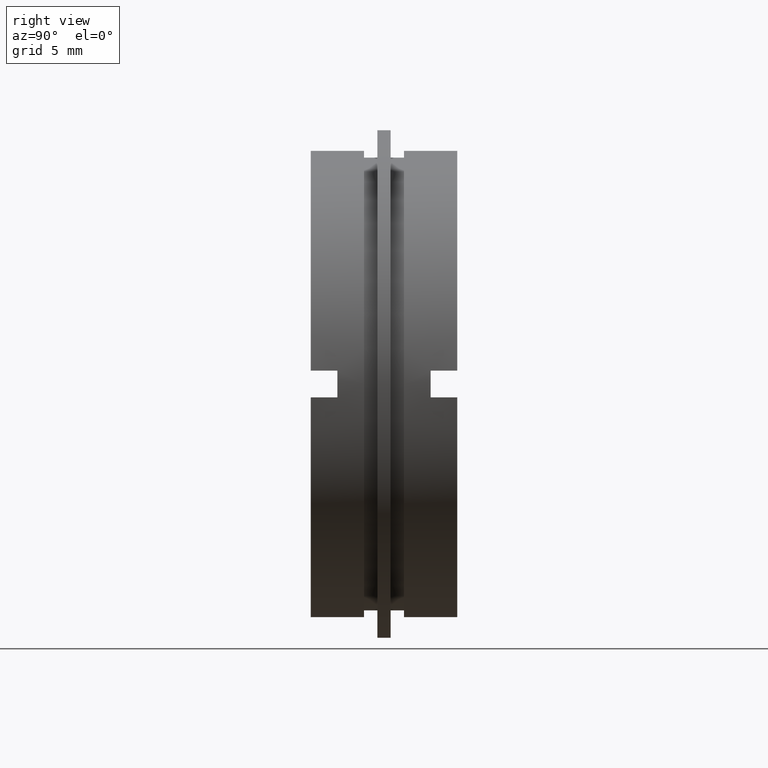
[diagram: clean part render]
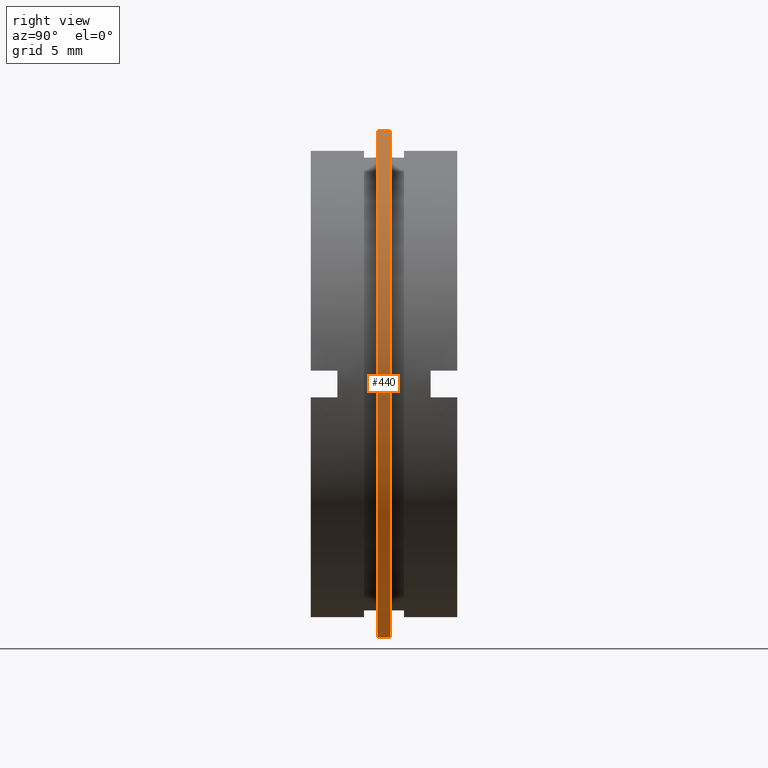
[diagram: same view with one face highlighted and labeled with its STEP entity id]
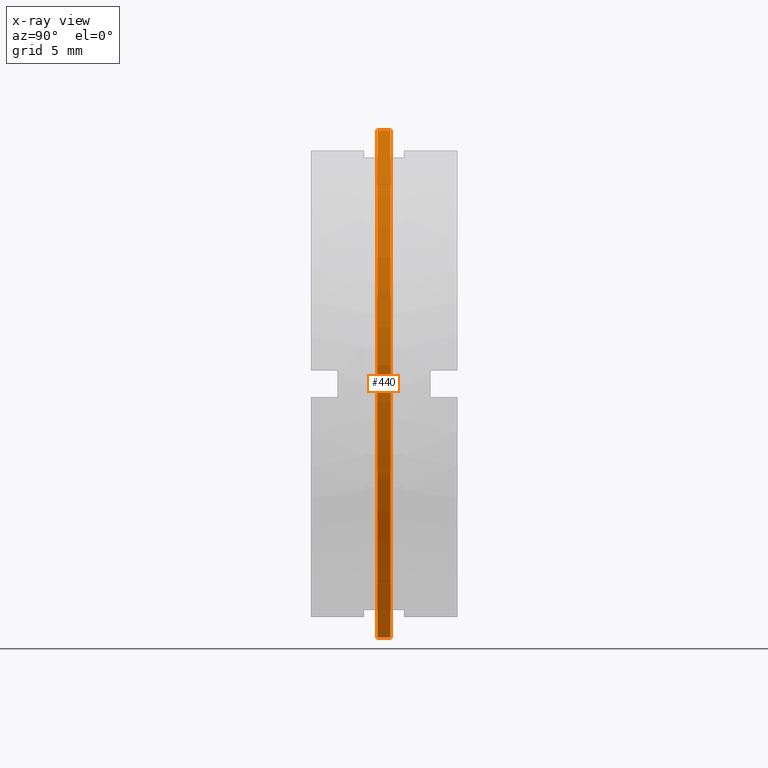
[diagram: x-ray of the same camera — body ghosted, the highlighted face saturated]
A machine part, right view. The second image highlights one B-rep face of the part: STEP entity #440.
The next image is the same camera in x-ray: the body ghosted, the highlighted face saturated — about 0% of this face is hidden behind the body in this view.
In plain terms, the highlighted cylindrical surface (partial cylindrical patch) has radius 19.05 mm, axis along (-0, 1, -0).
Its self-contained STEP definition (entity closure, byte-faithful):
#20 = AXIS2_PLACEMENT_3D ( 'NONE', #1003, #861, #478 ) ;
#42 = DIRECTION ( 'NONE',  ( -0.0000000000000000000, 1.000000000000000000, -0.0000000000000000000 ) ) ;
#70 = DIRECTION ( 'NONE',  ( -0.0000000000000000000, 1.000000000000000000, -0.0000000000000000000 ) ) ;
#89 = DIRECTION ( 'NONE',  ( -0.0000000000000000000, 1.000000000000000000, -0.0000000000000000000 ) ) ;
#95 = VECTOR ( 'NONE', #89, 1000.000000000000000 ) ;
#111 = CIRCLE ( 'NONE', #544, 19.04999999999999700 ) ;
#128 = CARTESIAN_POINT ( 'NONE',  ( 0.0000000000000000000, 5.000000000000000900, 0.0000000000000000000 ) ) ;
#186 = LINE ( 'NONE', #459, #1144 ) ;
#204 = CARTESIAN_POINT ( 'NONE',  ( 2.332952152375707300E-015, 6.000000000000001800, -19.04999999999999700 ) ) ;
#214 = VERTEX_POINT ( 'NONE', #204 ) ;
#228 = EDGE_CURVE ( 'NONE', #833, #214, #1131, .T. ) ;
#234 = CARTESIAN_POINT ( 'NONE',  ( 0.0000000000000000000, 6.000000000000001800, 19.04999999999999700 ) ) ;
#248 = CARTESIAN_POINT ( 'NONE',  ( 0.0000000000000000000, 22.67749945107591400, 0.0000000000000000000 ) ) ;
#429 = CARTESIAN_POINT ( 'NONE',  ( 2.332952152375707300E-015, 5.000000000000000900, -19.04999999999999700 ) ) ;
#440 = ADVANCED_FACE ( 'NONE', ( #895 ), #791, .T. ) ;
#459 = CARTESIAN_POINT ( 'NONE',  ( 0.0000000000000000000, 22.67749945107591400, 19.04999999999999700 ) ) ;
#465 = ORIENTED_EDGE ( 'NONE', *, *, #580, .T. ) ;
#478 = DIRECTION ( 'NONE',  ( 0.0000000000000000000, 0.0000000000000000000, 1.000000000000000000 ) ) ;
#487 = CARTESIAN_POINT ( 'NONE',  ( 0.0000000000000000000, 5.000000000000000900, 19.04999999999999700 ) ) ;
#516 = DIRECTION ( 'NONE',  ( 0.0000000000000000000, 0.0000000000000000000, 1.000000000000000000 ) ) ;
#539 = VERTEX_POINT ( 'NONE', #487 ) ;
#544 = AXIS2_PLACEMENT_3D ( 'NONE', #128, #42, #566 ) ;
#566 = DIRECTION ( 'NONE',  ( 0.0000000000000000000, 0.0000000000000000000, 1.000000000000000000 ) ) ;
#580 = EDGE_CURVE ( 'NONE', #539, #833, #111, .T. ) ;
#596 = EDGE_CURVE ( 'NONE', #795, #214, #869, .T. ) ;
#610 = AXIS2_PLACEMENT_3D ( 'NONE', #248, #70, #516 ) ;
#611 = CARTESIAN_POINT ( 'NONE',  ( 2.332952152375707300E-015, 22.67749945107591400, -19.04999999999999700 ) ) ;
#730 = DIRECTION ( 'NONE',  ( -0.0000000000000000000, 1.000000000000000000, -0.0000000000000000000 ) ) ;
#791 = CYLINDRICAL_SURFACE ( 'NONE', #610, 19.04999999999999700 ) ;
#795 = VERTEX_POINT ( 'NONE', #234 ) ;
#827 = ORIENTED_EDGE ( 'NONE', *, *, #935, .F. ) ;
#833 = VERTEX_POINT ( 'NONE', #429 ) ;
#861 = DIRECTION ( 'NONE',  ( -0.0000000000000000000, 1.000000000000000000, -0.0000000000000000000 ) ) ;
#865 = ORIENTED_EDGE ( 'NONE', *, *, #228, .T. ) ;
#869 = CIRCLE ( 'NONE', #20, 19.04999999999999700 ) ;
#895 = FACE_OUTER_BOUND ( 'NONE', #986, .T. ) ;
#935 = EDGE_CURVE ( 'NONE', #539, #795, #186, .T. ) ;
#974 = ORIENTED_EDGE ( 'NONE', *, *, #596, .F. ) ;
#986 = EDGE_LOOP ( 'NONE', ( #465, #865, #974, #827 ) ) ;
#1003 = CARTESIAN_POINT ( 'NONE',  ( 0.0000000000000000000, 6.000000000000001800, 0.0000000000000000000 ) ) ;
#1131 = LINE ( 'NONE', #611, #95 ) ;
#1144 = VECTOR ( 'NONE', #730, 1000.000000000000000 ) ;